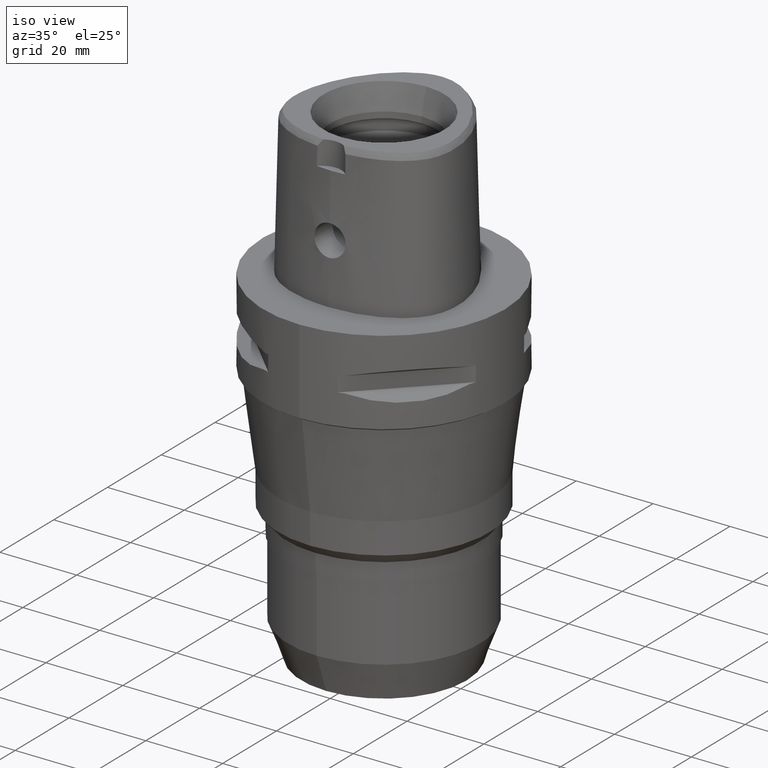
[diagram: clean part render]
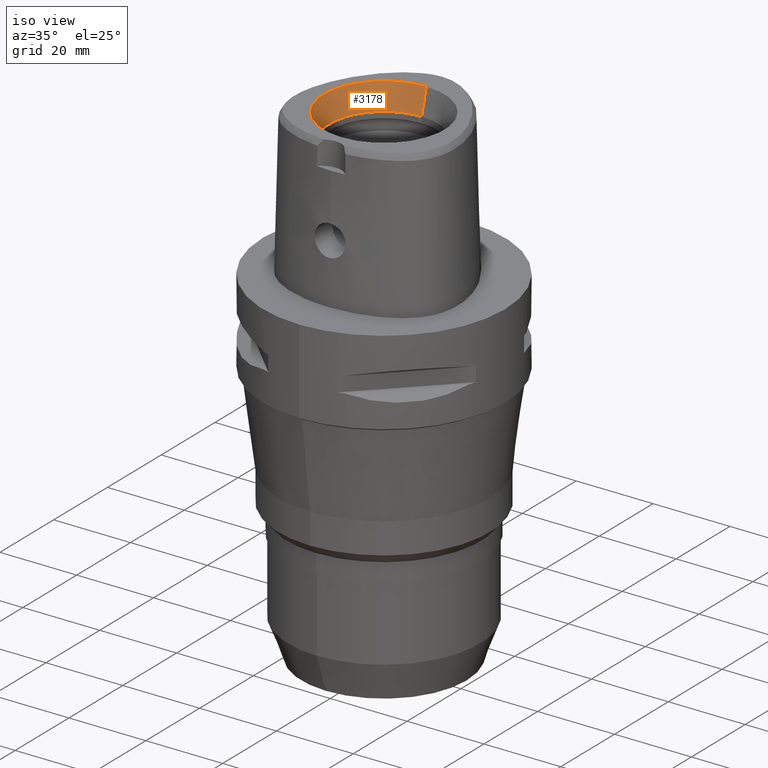
[diagram: same view with one face highlighted and labeled with its STEP entity id]
A machine part, iso view. The second image highlights one B-rep face of the part: STEP entity #3178.
In plain terms, the highlighted conical surface has half-angle 15 deg.
Its self-contained STEP definition (entity closure, byte-faithful):
#120=CARTESIAN_POINT('',(0.E0,0.E0,3.8E1));
#121=DIRECTION('',(0.E0,0.E0,1.E0));
#122=DIRECTION('',(0.E0,1.E0,0.E0));
#123=AXIS2_PLACEMENT_3D('',#120,#121,#122);
#1204=CARTESIAN_POINT('',(0.E0,0.E0,3.16E1));
#1205=DIRECTION('',(0.E0,0.E0,1.E0));
#1206=DIRECTION('',(0.E0,1.E0,0.E0));
#1207=AXIS2_PLACEMENT_3D('',#1204,#1205,#1206);
#1212=DIRECTION('',(0.E0,-2.588190451026E-1,9.659258262891E-1));
#1213=VECTOR('',#1212,6.625767554625E0);
#1214=CARTESIAN_POINT('',(0.E0,-1.4E1,3.16E1));
#1215=LINE('',#1214,#1213);
#1227=DIRECTION('',(0.E0,2.588190451026E-1,9.659258262891E-1));
#1228=VECTOR('',#1227,6.625767554625E0);
#1229=CARTESIAN_POINT('',(0.E0,1.4E1,3.16E1));
#1230=LINE('',#1229,#1228);
#1541=CARTESIAN_POINT('',(0.E0,1.571487483156E1,3.8E1));
#1542=CARTESIAN_POINT('',(0.E0,-1.571487483156E1,3.8E1));
#1543=VERTEX_POINT('',#1541);
#1544=VERTEX_POINT('',#1542);
#1701=CARTESIAN_POINT('',(0.E0,-1.4E1,3.16E1));
#1702=VERTEX_POINT('',#1701);
#1703=CARTESIAN_POINT('',(0.E0,1.4E1,3.16E1));
#1704=VERTEX_POINT('',#1703);
#3165=CARTESIAN_POINT('',(0.E0,0.E0,3.48E1));
#3166=DIRECTION('',(0.E0,0.E0,1.E0));
#3167=DIRECTION('',(0.E0,1.E0,0.E0));
#3168=AXIS2_PLACEMENT_3D('',#3165,#3166,#3167);
#3169=CONICAL_SURFACE('',#3168,1.485743741578E1,1.5E1);
#3170=ORIENTED_EDGE('',*,*,#1720,.F.);
#3172=ORIENTED_EDGE('',*,*,#3171,.F.);
#3173=ORIENTED_EDGE('',*,*,#3158,.T.);
#3175=ORIENTED_EDGE('',*,*,#3174,.T.);
#3176=EDGE_LOOP('',(#3170,#3172,#3173,#3175));
#3177=FACE_OUTER_BOUND('',#3176,.F.);
#124=CIRCLE('',#123,1.571487483156E1);
#1208=CIRCLE('',#1207,1.4E1);
#1720=EDGE_CURVE('',#1543,#1544,#124,.T.);
#3158=EDGE_CURVE('',#1704,#1702,#1208,.T.);
#3171=EDGE_CURVE('',#1704,#1543,#1230,.T.);
#3174=EDGE_CURVE('',#1702,#1544,#1215,.T.);
#3178=ADVANCED_FACE('',(#3177),#3169,.F.);